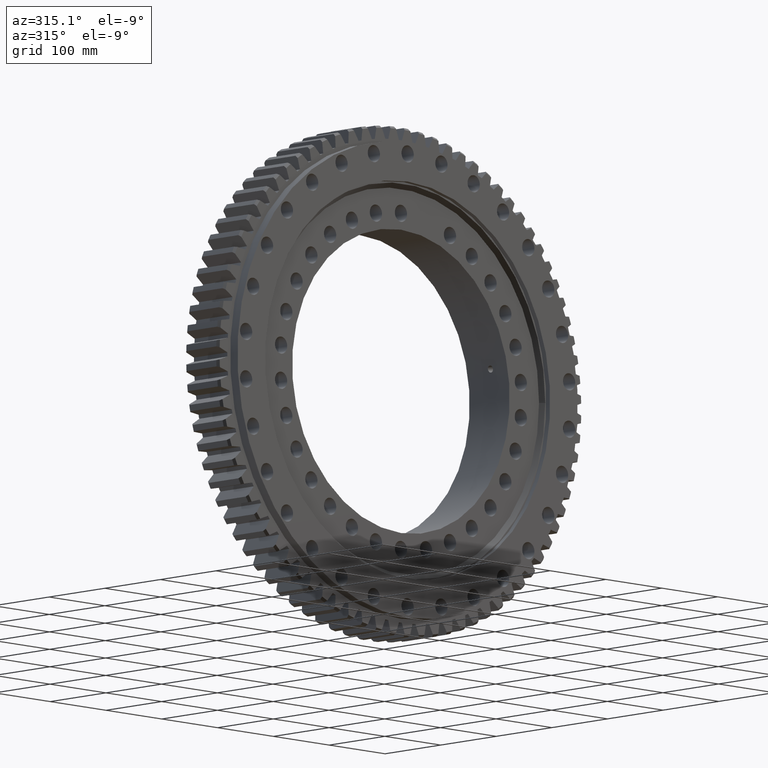
[diagram: clean part render]
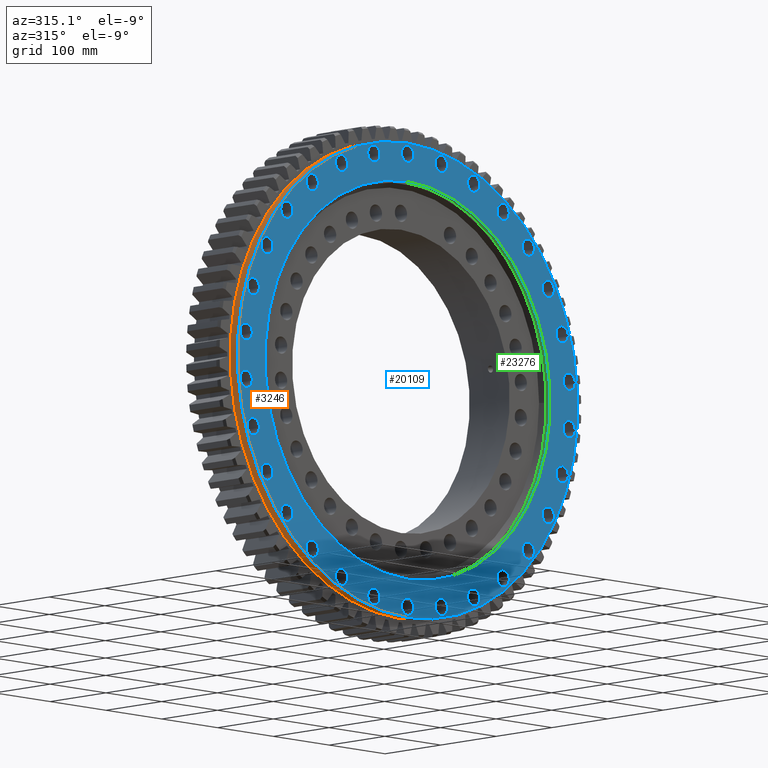
[diagram: same view with three faces highlighted in distinct colors, each labeled with its STEP entity id]
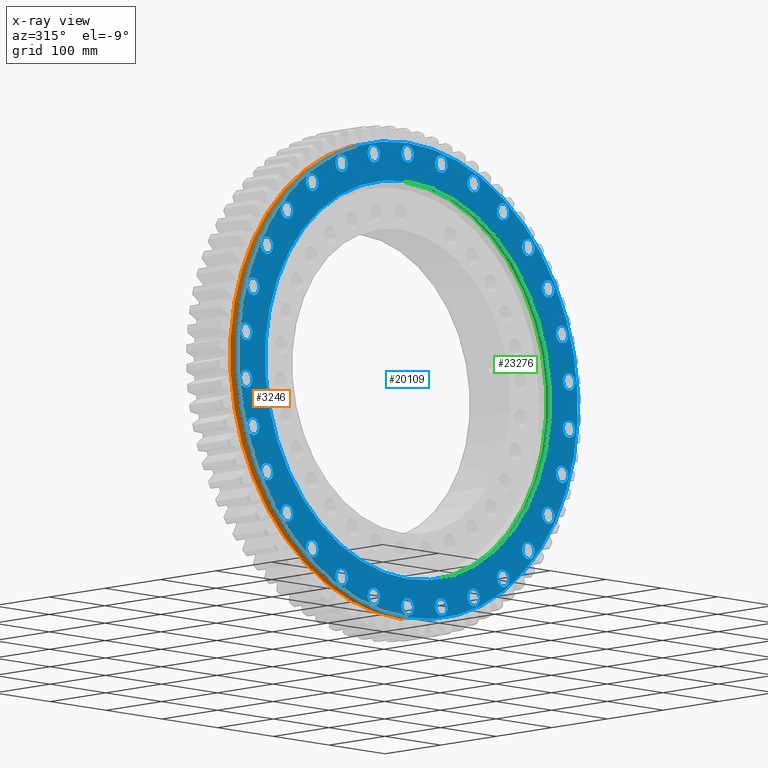
[diagram: x-ray of the same camera — body ghosted, the three highlighted faces saturated]
A machine part, auxiliary view with three faces highlighted in distinct colors.
The next image is the same camera in x-ray (body ghosted, the three faces saturated) — at least one of them is partly hidden behind the body in this view.
Their STEP definitions:

[orange] entity #3246 — the highlighted cylindrical surface (partial cylindrical patch) has radius 305 mm, axis along (-0, 1, -0).
#69 = EDGE_CURVE ( 'NONE', #17005, #770, #4381, .T. ) ;
#510 = CARTESIAN_POINT ( 'NONE',  ( 0.0000000000000000000, 68.26107226107227200, 304.9999999999999400 ) ) ;
#583 = CARTESIAN_POINT ( 'NONE',  ( 0.0000000000000000000, -29.50000000000002500, 304.9999999999999400 ) ) ;
#770 = VERTEX_POINT ( 'NONE', #583 ) ;
#1621 = ORIENTED_EDGE ( 'NONE', *, *, #9863, .F. ) ;
#1675 = AXIS2_PLACEMENT_3D ( 'NONE', #20927, #6212, #2640 ) ;
#2578 = VERTEX_POINT ( 'NONE', #14907 ) ;
#2640 = DIRECTION ( 'NONE',  ( 0.0000000000000000000, 0.0000000000000000000, 1.000000000000000000 ) ) ;
#3246 = ADVANCED_FACE ( 'NONE', ( #18873 ), #3648, .T. ) ;
#3648 = CYLINDRICAL_SURFACE ( 'NONE', #1675, 304.9999999999999400 ) ;
#4381 = CIRCLE ( 'NONE', #9609, 304.9999999999999400 ) ;
#5929 = CARTESIAN_POINT ( 'NONE',  ( 0.0000000000000000000, -29.50000000000002500, 0.0000000000000000000 ) ) ;
#6212 = DIRECTION ( 'NONE',  ( -0.0000000000000000000, 1.000000000000000000, -0.0000000000000000000 ) ) ;
#6254 = DIRECTION ( 'NONE',  ( 0.0000000000000000000, -1.000000000000000000, 0.0000000000000000000 ) ) ;
#6572 = ORIENTED_EDGE ( 'NONE', *, *, #69, .F. ) ;
#9134 = DIRECTION ( 'NONE',  ( -0.0000000000000000000, 1.000000000000000000, -0.0000000000000000000 ) ) ;
#9609 = AXIS2_PLACEMENT_3D ( 'NONE', #5929, #20463, #20553 ) ;
#9863 = EDGE_CURVE ( 'NONE', #2578, #18485, #19104, .T. ) ;
#11375 = AXIS2_PLACEMENT_3D ( 'NONE', #17276, #6254, #19137 ) ;
#11446 = EDGE_CURVE ( 'NONE', #2578, #770, #19587, .T. ) ;
#11471 = DIRECTION ( 'NONE',  ( -0.0000000000000000000, 1.000000000000000000, -0.0000000000000000000 ) ) ;
#13831 = CARTESIAN_POINT ( 'NONE',  ( 3.735172737399426400E-014, -29.50000000000002500, -304.9999999999999400 ) ) ;
#14682 = ORIENTED_EDGE ( 'NONE', *, *, #11446, .T. ) ;
#14907 = CARTESIAN_POINT ( 'NONE',  ( 0.0000000000000000000, -42.50000000000002100, 304.9999999999999400 ) ) ;
#16018 = EDGE_CURVE ( 'NONE', #18485, #17005, #18386, .T. ) ;
#17005 = VERTEX_POINT ( 'NONE', #13831 ) ;
#17234 = VECTOR ( 'NONE', #9134, 1000.000000000000000 ) ;
#17276 = CARTESIAN_POINT ( 'NONE',  ( 0.0000000000000000000, -42.50000000000002100, 0.0000000000000000000 ) ) ;
#18386 = LINE ( 'NONE', #22002, #17234 ) ;
#18443 = VECTOR ( 'NONE', #11471, 1000.000000000000000 ) ;
#18485 = VERTEX_POINT ( 'NONE', #22409 ) ;
#18873 = FACE_OUTER_BOUND ( 'NONE', #19441, .T. ) ;
#19104 = CIRCLE ( 'NONE', #11375, 304.9999999999999400 ) ;
#19137 = DIRECTION ( 'NONE',  ( 0.0000000000000000000, 0.0000000000000000000, 1.000000000000000000 ) ) ;
#19441 = EDGE_LOOP ( 'NONE', ( #21495, #1621, #14682, #6572 ) ) ;
#19587 = LINE ( 'NONE', #510, #18443 ) ;
#20463 = DIRECTION ( 'NONE',  ( -0.0000000000000000000, 1.000000000000000000, -0.0000000000000000000 ) ) ;
#20553 = DIRECTION ( 'NONE',  ( 0.0000000000000000000, 0.0000000000000000000, 1.000000000000000000 ) ) ;
#20927 = CARTESIAN_POINT ( 'NONE',  ( 0.0000000000000000000, 68.26107226107227200, 0.0000000000000000000 ) ) ;
#21495 = ORIENTED_EDGE ( 'NONE', *, *, #16018, .F. ) ;
#22002 = CARTESIAN_POINT ( 'NONE',  ( 3.735172737399426400E-014, 68.26107226107227200, -304.9999999999999400 ) ) ;
#22409 = CARTESIAN_POINT ( 'NONE',  ( 3.735172737399426400E-014, -42.50000000000002100, -304.9999999999999400 ) ) ;

[blue] entity #20109 — the highlighted planar face has unit normal (-0, 1, 0).
#18 = ORIENTED_EDGE ( 'NONE', *, *, #8493, .T. ) ;
#55 = CIRCLE ( 'NONE', #2394, 11.00000000000003200 ) ;
#77 = DIRECTION ( 'NONE',  ( 0.0000000000000000000, 0.0000000000000000000, 1.000000000000000000 ) ) ;
#82 = DIRECTION ( 'NONE',  ( 0.0000000000000000000, 1.000000000000000000, 0.0000000000000000000 ) ) ;
#114 = ORIENTED_EDGE ( 'NONE', *, *, #11133, .T. ) ;
#230 = ORIENTED_EDGE ( 'NONE', *, *, #11137, .T. ) ;
#270 = DIRECTION ( 'NONE',  ( 0.0000000000000000000, 1.000000000000000000, 0.0000000000000000000 ) ) ;
#290 = ORIENTED_EDGE ( 'NONE', *, *, #20860, .T. ) ;
#300 = DIRECTION ( 'NONE',  ( 0.0000000000000000000, 1.000000000000000000, 0.0000000000000000000 ) ) ;
#424 = FACE_BOUND ( 'NONE', #1001, .T. ) ;
#438 = ORIENTED_EDGE ( 'NONE', *, *, #1253, .T. ) ;
#501 = DIRECTION ( 'NONE',  ( 0.4067366430757892200, 0.0000000000000000000, 0.9135454576426058600 ) ) ;
#588 = CARTESIAN_POINT ( 'NONE',  ( 60.50230202796588900, -42.50000000000002100, -273.6409518135379200 ) ) ;
#651 = CARTESIAN_POINT ( 'NONE',  ( -216.2551442139236100, -42.50000000000002100, -205.7170064504256900 ) ) ;
#654 = EDGE_CURVE ( 'NONE', #5670, #16531, #20168, .T. ) ;
#661 = VERTEX_POINT ( 'NONE', #16155 ) ;
#715 = DIRECTION ( 'NONE',  ( 0.0000000000000000000, 1.000000000000000000, 0.0000000000000000000 ) ) ;
#728 = EDGE_CURVE ( 'NONE', #8967, #661, #3814, .T. ) ;
#768 = CIRCLE ( 'NONE', #17218, 11.00000000000000000 ) ;
#829 = ORIENTED_EDGE ( 'NONE', *, *, #14671, .T. ) ;
#949 = CIRCLE ( 'NONE', #11562, 11.00000000000002300 ) ;
#976 = CARTESIAN_POINT ( 'NONE',  ( -118.3603631350542300, -42.50000000000002100, 265.8417281739984900 ) ) ;
#992 = FACE_BOUND ( 'NONE', #12440, .T. ) ;
#1001 = EDGE_LOOP ( 'NONE', ( #15918, #7881 ) ) ;
#1020 = ORIENTED_EDGE ( 'NONE', *, *, #8363, .T. ) ;
#1044 = ORIENTED_EDGE ( 'NONE', *, *, #14690, .T. ) ;
#1182 = CIRCLE ( 'NONE', #15496, 11.00000000000001100 ) ;
#1220 = CARTESIAN_POINT ( 'NONE',  ( 276.7574462418892300, -42.50000000000002100, -100.9239453631111000 ) ) ;
#1253 = EDGE_CURVE ( 'NONE', #8381, #22662, #4364, .T. ) ;
#1256 = CARTESIAN_POINT ( 'NONE',  ( 171.0455084171102800, -42.50000000000002100, 224.4239453631093100 ) ) ;
#1310 = VERTEX_POINT ( 'NONE', #6782 ) ;
#1394 = ORIENTED_EDGE ( 'NONE', *, *, #1625, .T. ) ;
#1400 = AXIS2_PLACEMENT_3D ( 'NONE', #2234, #15087, #4093 ) ;
#1408 = VERTEX_POINT ( 'NONE', #1256 ) ;
#1540 = ORIENTED_EDGE ( 'NONE', *, *, #10715, .T. ) ;
#1557 = EDGE_CURVE ( 'NONE', #6285, #21582, #2334, .T. ) ;
#1598 = DIRECTION ( 'NONE',  ( 0.0000000000000000000, 1.000000000000000000, 0.0000000000000000000 ) ) ;
#1616 = EDGE_CURVE ( 'NONE', #15030, #19553, #1182, .T. ) ;
#1625 = EDGE_CURVE ( 'NONE', #22439, #18117, #5456, .T. ) ;
#1626 = CIRCLE ( 'NONE', #7842, 255.4999999999999400 ) ;
#1657 = EDGE_LOOP ( 'NONE', ( #3484, #5164 ) ) ;
#1773 = EDGE_CURVE ( 'NONE', #8795, #19900, #22701, .T. ) ;
#1774 = CIRCLE ( 'NONE', #19342, 11.00000000000001400 ) ;
#1823 = CARTESIAN_POINT ( 'NONE',  ( -171.0455084171119000, -42.50000000000002100, -235.4239453631081200 ) ) ;
#1844 = CARTESIAN_POINT ( 'NONE',  ( 0.0000000000000000000, -42.50000000000001400, 255.4999999999999400 ) ) ;
#1860 = AXIS2_PLACEMENT_3D ( 'NONE', #7096, #19968, #8949 ) ;
#1929 = EDGE_CURVE ( 'NONE', #14954, #12591, #10027, .T. ) ;
#2081 = CIRCLE ( 'NONE', #23667, 10.99999999999998000 ) ;
#2097 = CARTESIAN_POINT ( 'NONE',  ( 0.0000000000000000000, -42.50000000000000700, 0.0000000000000000000 ) ) ;
#2102 = CARTESIAN_POINT ( 'NONE',  ( -289.4058715521673000, -42.50000000000002100, 19.41778281089049000 ) ) ;
#2158 = EDGE_CURVE ( 'NONE', #18144, #3255, #20673, .T. ) ;
#2229 = CARTESIAN_POINT ( 'NONE',  ( 276.7574462418900800, -42.50000000000002100, 100.9239453631085900 ) ) ;
#2234 = CARTESIAN_POINT ( 'NONE',  ( 171.0455084171081800, -42.50000000000002100, -235.4239453631108200 ) ) ;
#2246 = AXIS2_PLACEMENT_3D ( 'NONE', #2789, #15614, #4615 ) ;
#2250 = VERTEX_POINT ( 'NONE', #2102 ) ;
#2281 = VERTEX_POINT ( 'NONE', #14937 ) ;
#2334 = CIRCLE ( 'NONE', #4441, 11.00000000000002500 ) ;
#2353 = VERTEX_POINT ( 'NONE', #4126 ) ;
#2394 = AXIS2_PLACEMENT_3D ( 'NONE', #20551, #9521, #22379 ) ;
#2400 = DIRECTION ( 'NONE',  ( 0.0000000000000000000, 1.000000000000000000, 0.0000000000000000000 ) ) ;
#2428 = CARTESIAN_POINT ( 'NONE',  ( 216.2551442139222500, -42.50000000000002100, 205.7170064504271900 ) ) ;
#2482 = ORIENTED_EDGE ( 'NONE', *, *, #16658, .T. ) ;
#2531 = ORIENTED_EDGE ( 'NONE', *, *, #654, .T. ) ;
#2543 = DIRECTION ( 'NONE',  ( 0.0000000000000000000, 1.000000000000000000, 0.0000000000000000000 ) ) ;
#2578 = VERTEX_POINT ( 'NONE', #14907 ) ;
#2625 = VERTEX_POINT ( 'NONE', #8091 ) ;
#2789 = CARTESIAN_POINT ( 'NONE',  ( 60.50230202796588900, -42.50000000000002100, -284.6409518135379200 ) ) ;
#2814 = DIRECTION ( 'NONE',  ( -0.4067366430758004900, 0.0000000000000000000, 0.9135454576426008700 ) ) ;
#2819 = AXIS2_PLACEMENT_3D ( 'NONE', #18862, #7854, #20681 ) ;
#2973 = VERTEX_POINT ( 'NONE', #3844 ) ;
#2993 = FACE_BOUND ( 'NONE', #22745, .T. ) ;
#3041 = CARTESIAN_POINT ( 'NONE',  ( -252.0133925012731300, -42.50000000000002100, -156.4999999999975300 ) ) ;
#3060 = DIRECTION ( 'NONE',  ( 0.0000000000000000000, 1.000000000000000000, 0.0000000000000000000 ) ) ;
#3066 = ORIENTED_EDGE ( 'NONE', *, *, #5038, .T. ) ;
#3198 = EDGE_CURVE ( 'NONE', #2250, #16619, #14544, .T. ) ;
#3200 = CARTESIAN_POINT ( 'NONE',  ( 289.4058715521677500, -42.50000000000002100, 19.41778281088588200 ) ) ;
#3201 = AXIS2_PLACEMENT_3D ( 'NONE', #20628, #9616, #22474 ) ;
#3213 = ORIENTED_EDGE ( 'NONE', *, *, #2158, .T. ) ;
#3248 = CARTESIAN_POINT ( 'NONE',  ( -276.7574462418886600, -42.50000000000002100, 78.92394536311302000 ) ) ;
#3255 = VERTEX_POINT ( 'NONE', #19168 ) ;
#3266 = ORIENTED_EDGE ( 'NONE', *, *, #9863, .T. ) ;
#3280 = CARTESIAN_POINT ( 'NONE',  ( -171.0455084171119000, -42.50000000000002100, -224.4239453631081200 ) ) ;
#3296 = CARTESIAN_POINT ( 'NONE',  ( 118.3603631350584600, -42.50000000000002100, 265.8417281739967300 ) ) ;
#3304 = EDGE_LOOP ( 'NONE', ( #5998, #13086 ) ) ;
#3423 = AXIS2_PLACEMENT_3D ( 'NONE', #22463, #11457, #501 ) ;
#3455 = CARTESIAN_POINT ( 'NONE',  ( -276.7574462418907000, -42.50000000000002100, -100.9239453631068400 ) ) ;
#3464 = EDGE_CURVE ( 'NONE', #18485, #2578, #19139, .T. ) ;
#3484 = ORIENTED_EDGE ( 'NONE', *, *, #14901, .T. ) ;
#3506 = CARTESIAN_POINT ( 'NONE',  ( 276.7574462418892300, -42.50000000000002100, -89.92394536311108800 ) ) ;
#3562 = DIRECTION ( 'NONE',  ( 0.0000000000000000000, 1.000000000000000000, 0.0000000000000000000 ) ) ;
#3575 = FACE_BOUND ( 'NONE', #11134, .T. ) ;
#3615 = VERTEX_POINT ( 'NONE', #15500 ) ;
#3653 = CARTESIAN_POINT ( 'NONE',  ( -216.2551442139192900, -42.50000000000002100, 194.7170064504305500 ) ) ;
#3671 = AXIS2_PLACEMENT_3D ( 'NONE', #12580, #1598, #14432 ) ;
#3676 = DIRECTION ( 'NONE',  ( -0.5877852522924685900, 0.0000000000000000000, -0.8090169943749506700 ) ) ;
#3714 = EDGE_LOOP ( 'NONE', ( #22563, #290 ) ) ;
#3753 = ORIENTED_EDGE ( 'NONE', *, *, #14851, .T. ) ;
#3814 = CIRCLE ( 'NONE', #17322, 255.4999999999999400 ) ;
#3825 = EDGE_LOOP ( 'NONE', ( #8772, #16778 ) ) ;
#3830 = EDGE_LOOP ( 'NONE', ( #3266, #22923 ) ) ;
#3844 = CARTESIAN_POINT ( 'NONE',  ( 276.7574462418892300, -42.50000000000002100, -78.92394536311107300 ) ) ;
#3897 = EDGE_CURVE ( 'NONE', #23567, #8556, #7331, .T. ) ;
#3971 = AXIS2_PLACEMENT_3D ( 'NONE', #13531, #2543, #15391 ) ;
#4033 = DIRECTION ( 'NONE',  ( 0.0000000000000000000, 1.000000000000000000, 0.0000000000000000000 ) ) ;
#4047 = DIRECTION ( 'NONE',  ( -0.0000000000000000000, 1.000000000000000000, -0.0000000000000000000 ) ) ;
#4093 = DIRECTION ( 'NONE',  ( 0.5877852522924800200, 0.0000000000000000000, -0.8090169943749423400 ) ) ;
#4097 = AXIS2_PLACEMENT_3D ( 'NONE', #1844, #11056, #77 ) ;
#4126 = CARTESIAN_POINT ( 'NONE',  ( 4.246603069191223000E-012, -42.50000000000002100, 302.0000000000000600 ) ) ;
#4150 = DIRECTION ( 'NONE',  ( 0.0000000000000000000, 1.000000000000000000, 0.0000000000000000000 ) ) ;
#4153 = ORIENTED_EDGE ( 'NONE', *, *, #12889, .T. ) ;
#4156 = FACE_BOUND ( 'NONE', #7775, .T. ) ;
#4164 = AXIS2_PLACEMENT_3D ( 'NONE', #18589, #7567, #20406 ) ;
#4329 = CARTESIAN_POINT ( 'NONE',  ( -289.4058715521673000, -42.50000000000002100, 30.41778281089049000 ) ) ;
#4338 = AXIS2_PLACEMENT_3D ( 'NONE', #15026, #4033, #16863 ) ;
#4364 = CIRCLE ( 'NONE', #22567, 11.00000000000000900 ) ;
#4370 = CARTESIAN_POINT ( 'NONE',  ( -276.7574462418886600, -42.50000000000002100, 89.92394536311303500 ) ) ;
#4387 = CARTESIAN_POINT ( 'NONE',  ( -60.50230202796395000, -42.50000000000002100, 284.6409518135383200 ) ) ;
#4441 = AXIS2_PLACEMENT_3D ( 'NONE', #5794, #270, #13112 ) ;
#4448 = CIRCLE ( 'NONE', #12723, 11.00000000000002500 ) ;
#4457 = VERTEX_POINT ( 'NONE', #2428 ) ;
#4519 = CARTESIAN_POINT ( 'NONE',  ( 171.0455084171081800, -42.50000000000002100, -235.4239453631108200 ) ) ;
#4532 = DIRECTION ( 'NONE',  ( 0.0000000000000000000, 1.000000000000000000, 0.0000000000000000000 ) ) ;
#4534 = ORIENTED_EDGE ( 'NONE', *, *, #17228, .T. ) ;
#4549 = CIRCLE ( 'NONE', #11013, 11.00000000000000500 ) ;
#4589 = CARTESIAN_POINT ( 'NONE',  ( 252.0133925012709100, -42.50000000000002100, -145.5000000000013600 ) ) ;
#4591 = EDGE_CURVE ( 'NONE', #21582, #6285, #9303, .T. ) ;
#4615 = DIRECTION ( 'NONE',  ( 0.2079116908177662500, 0.0000000000000000000, -0.9781476007338041300 ) ) ;
#4628 = AXIS2_PLACEMENT_3D ( 'NONE', #1823, #14650, #3676 ) ;
#4713 = FACE_BOUND ( 'NONE', #11421, .T. ) ;
#4733 = CARTESIAN_POINT ( 'NONE',  ( -276.7574462418907000, -42.50000000000002100, -78.92394536310682400 ) ) ;
#4782 = EDGE_CURVE ( 'NONE', #10569, #22959, #10730, .T. ) ;
#4785 = VERTEX_POINT ( 'NONE', #21806 ) ;
#4799 = EDGE_LOOP ( 'NONE', ( #10605, #114 ) ) ;
#4822 = EDGE_CURVE ( 'NONE', #9333, #1408, #18805, .T. ) ;
#4832 = CARTESIAN_POINT ( 'NONE',  ( -60.50230202797035900, -42.50000000000002100, -295.6409518135369600 ) ) ;
#4845 = VERTEX_POINT ( 'NONE', #18357 ) ;
#4916 = AXIS2_PLACEMENT_3D ( 'NONE', #13395, #2400, #15231 ) ;
#4919 = DIRECTION ( 'NONE',  ( 0.0000000000000000000, 1.000000000000000000, 0.0000000000000000000 ) ) ;
#4928 = CIRCLE ( 'NONE', #7292, 10.99999999999997700 ) ;
#5038 = EDGE_CURVE ( 'NONE', #18117, #22439, #20207, .T. ) ;
#5109 = DIRECTION ( 'NONE',  ( 0.4067366430757892200, 0.0000000000000000000, 0.9135454576426058600 ) ) ;
#5164 = ORIENTED_EDGE ( 'NONE', *, *, #9169, .T. ) ;
#5181 = DIRECTION ( 'NONE',  ( 0.0000000000000000000, 1.000000000000000000, 0.0000000000000000000 ) ) ;
#5281 = FACE_BOUND ( 'NONE', #13241, .T. ) ;
#5291 = VERTEX_POINT ( 'NONE', #3041 ) ;
#5301 = CARTESIAN_POINT ( 'NONE',  ( -252.0133925012699200, -42.50000000000002100, 134.5000000000031300 ) ) ;
#5335 = DIRECTION ( 'NONE',  ( 0.9510565162951566400, 0.0000000000000000000, -0.3090169943749381300 ) ) ;
#5347 = EDGE_CURVE ( 'NONE', #16595, #20580, #19662, .T. ) ;
#5348 = DIRECTION ( 'NONE',  ( 0.0000000000000000000, 1.000000000000000000, 0.0000000000000000000 ) ) ;
#5350 = CIRCLE ( 'NONE', #16441, 10.99999999999999300 ) ;
#5386 = VERTEX_POINT ( 'NONE', #22101 ) ;
#5426 = CARTESIAN_POINT ( 'NONE',  ( 4.247950180670285100E-012, -42.50000000000002100, 280.0000000000000000 ) ) ;
#5456 = CIRCLE ( 'NONE', #17975, 10.99999999999999100 ) ;
#5460 = DIRECTION ( 'NONE',  ( -0.7431448254773949100, 0.0000000000000000000, 0.6691306063588573500 ) ) ;
#5522 = CIRCLE ( 'NONE', #19171, 11.00000000000001100 ) ;
#5628 = CARTESIAN_POINT ( 'NONE',  ( -276.7574462418886600, -42.50000000000002100, 89.92394536311303500 ) ) ;
#5639 = DIRECTION ( 'NONE',  ( 0.0000000000000000000, 1.000000000000000000, 0.0000000000000000000 ) ) ;
#5640 = CARTESIAN_POINT ( 'NONE',  ( 276.7574462418892300, -42.50000000000002100, -89.92394536311108800 ) ) ;
#5670 = VERTEX_POINT ( 'NONE', #5301 ) ;
#5681 = DIRECTION ( 'NONE',  ( 0.0000000000000000000, 1.000000000000000000, 0.0000000000000000000 ) ) ;
#5781 = CIRCLE ( 'NONE', #21374, 11.00000000000002700 ) ;
#5794 = CARTESIAN_POINT ( 'NONE',  ( -289.4058715521679200, -42.50000000000002100, -30.41778281088399500 ) ) ;
#5854 = FACE_BOUND ( 'NONE', #9876, .T. ) ;
#5893 = CARTESIAN_POINT ( 'NONE',  ( 216.2551442139206000, -42.50000000000002100, -205.7170064504291000 ) ) ;
#5947 = ORIENTED_EDGE ( 'NONE', *, *, #17435, .T. ) ;
#5998 = ORIENTED_EDGE ( 'NONE', *, *, #18381, .T. ) ;
#6007 = ORIENTED_EDGE ( 'NONE', *, *, #6178, .T. ) ;
#6043 = CIRCLE ( 'NONE', #16830, 11.00000000000002300 ) ;
#6153 = DIRECTION ( 'NONE',  ( -0.9945218953682737300, 0.0000000000000000000, 0.1045284632676502900 ) ) ;
#6169 = CIRCLE ( 'NONE', #17533, 11.00000000000001100 ) ;
#6178 = EDGE_CURVE ( 'NONE', #11488, #16610, #19903, .T. ) ;
#6182 = DIRECTION ( 'NONE',  ( -0.9510565162951543100, 0.0000000000000000000, 0.3090169943749452900 ) ) ;
#6195 = DIRECTION ( 'NONE',  ( -0.2079116908177595900, 0.0000000000000000000, 0.9781476007338055800 ) ) ;
#6208 = EDGE_CURVE ( 'NONE', #4457, #9603, #9549, .T. ) ;
#6251 = VERTEX_POINT ( 'NONE', #19525 ) ;
#6254 = DIRECTION ( 'NONE',  ( 0.0000000000000000000, -1.000000000000000000, 0.0000000000000000000 ) ) ;
#6285 = VERTEX_POINT ( 'NONE', #6758 ) ;
#6320 = DIRECTION ( 'NONE',  ( 0.0000000000000000000, 1.000000000000000000, 0.0000000000000000000 ) ) ;
#6385 = ORIENTED_EDGE ( 'NONE', *, *, #20530, .T. ) ;
#6405 = DIRECTION ( 'NONE',  ( 0.8660254037844428200, 0.0000000000000000000, -0.4999999999999928900 ) ) ;
#6541 = CARTESIAN_POINT ( 'NONE',  ( -289.4058715521679200, -42.50000000000002100, -30.41778281088399500 ) ) ;
#6604 = AXIS2_PLACEMENT_3D ( 'NONE', #20453, #9433, #22289 ) ;
#6631 = CIRCLE ( 'NONE', #20048, 11.00000000000000500 ) ;
#6752 = AXIS2_PLACEMENT_3D ( 'NONE', #10961, #23829, #12821 ) ;
#6758 = CARTESIAN_POINT ( 'NONE',  ( -289.4058715521679200, -42.50000000000002100, -41.41778281088399900 ) ) ;
#6782 = CARTESIAN_POINT ( 'NONE',  ( 252.0133925012720800, -42.50000000000002100, 156.4999999999992900 ) ) ;
#6842 = CARTESIAN_POINT ( 'NONE',  ( 276.7574462418900800, -42.50000000000002100, 89.92394536310857200 ) ) ;
#6993 = FACE_BOUND ( 'NONE', #3825, .T. ) ;
#7029 = DIRECTION ( 'NONE',  ( 0.0000000000000000000, 1.000000000000000000, 0.0000000000000000000 ) ) ;
#7084 = DIRECTION ( 'NONE',  ( 0.0000000000000000000, -1.000000000000000000, 0.0000000000000000000 ) ) ;
#7096 = CARTESIAN_POINT ( 'NONE',  ( -118.3603631350542300, -42.50000000000002100, 265.8417281739984900 ) ) ;
#7140 = AXIS2_PLACEMENT_3D ( 'NONE', #19453, #8461, #21300 ) ;
#7237 = CIRCLE ( 'NONE', #7395, 10.99999999999999300 ) ;
#7282 = EDGE_LOOP ( 'NONE', ( #9119, #10282 ) ) ;
#7292 = AXIS2_PLACEMENT_3D ( 'NONE', #9677, #22551, #11547 ) ;
#7319 = ORIENTED_EDGE ( 'NONE', *, *, #1557, .T. ) ;
#7331 = CIRCLE ( 'NONE', #9352, 10.99999999999998400 ) ;
#7395 = AXIS2_PLACEMENT_3D ( 'NONE', #5628, #18481, #7462 ) ;
#7428 = EDGE_CURVE ( 'NONE', #8261, #2973, #4448, .T. ) ;
#7462 = DIRECTION ( 'NONE',  ( -0.9510565162951543100, 0.0000000000000000000, 0.3090169943749452900 ) ) ;
#7478 = DIRECTION ( 'NONE',  ( 0.9510565162951566400, 0.0000000000000000000, -0.3090169943749381300 ) ) ;
#7548 = EDGE_CURVE ( 'NONE', #2973, #8261, #20510, .T. ) ;
#7567 = DIRECTION ( 'NONE',  ( 0.0000000000000000000, 1.000000000000000000, 0.0000000000000000000 ) ) ;
#7568 = ORIENTED_EDGE ( 'NONE', *, *, #22078, .T. ) ;
#7665 = CARTESIAN_POINT ( 'NONE',  ( 216.2551442139222500, -42.50000000000002100, 194.7170064504271900 ) ) ;
#7727 = VERTEX_POINT ( 'NONE', #21047 ) ;
#7741 = DIRECTION ( 'NONE',  ( 0.0000000000000000000, 1.000000000000000000, 0.0000000000000000000 ) ) ;
#7753 = AXIS2_PLACEMENT_3D ( 'NONE', #11260, #300, #13132 ) ;
#7775 = EDGE_LOOP ( 'NONE', ( #6385, #16882 ) ) ;
#7842 = AXIS2_PLACEMENT_3D ( 'NONE', #15044, #4047, #16877 ) ;
#7854 = DIRECTION ( 'NONE',  ( 0.0000000000000000000, 1.000000000000000000, 0.0000000000000000000 ) ) ;
#7872 = FACE_BOUND ( 'NONE', #12728, .T. ) ;
#7881 = ORIENTED_EDGE ( 'NONE', *, *, #7428, .T. ) ;
#7977 = CIRCLE ( 'NONE', #13378, 11.00000000000000400 ) ;
#7987 = EDGE_LOOP ( 'NONE', ( #1540, #2531 ) ) ;
#8091 = CARTESIAN_POINT ( 'NONE',  ( 118.3603631350584600, -42.50000000000002100, 276.8417281739967300 ) ) ;
#8169 = EDGE_LOOP ( 'NONE', ( #21794, #9058 ) ) ;
#8171 = ORIENTED_EDGE ( 'NONE', *, *, #10322, .T. ) ;
#8247 = CARTESIAN_POINT ( 'NONE',  ( 60.50230202796588900, -42.50000000000002100, -284.6409518135379200 ) ) ;
#8261 = VERTEX_POINT ( 'NONE', #1220 ) ;
#8363 = EDGE_CURVE ( 'NONE', #16619, #2250, #17881, .T. ) ;
#8378 = VERTEX_POINT ( 'NONE', #3455 ) ;
#8381 = VERTEX_POINT ( 'NONE', #14437 ) ;
#8399 = DIRECTION ( 'NONE',  ( -0.9945218953682729600, 0.0000000000000000000, -0.1045284632676571500 ) ) ;
#8400 = VERTEX_POINT ( 'NONE', #21810 ) ;
#8424 = ORIENTED_EDGE ( 'NONE', *, *, #4591, .T. ) ;
#8426 = FACE_BOUND ( 'NONE', #22520, .T. ) ;
#8448 = DIRECTION ( 'NONE',  ( 0.0000000000000000000, 1.000000000000000000, 0.0000000000000000000 ) ) ;
#8461 = DIRECTION ( 'NONE',  ( 0.0000000000000000000, 1.000000000000000000, 0.0000000000000000000 ) ) ;
#8493 = EDGE_CURVE ( 'NONE', #17477, #19737, #2081, .T. ) ;
#8509 = ORIENTED_EDGE ( 'NONE', *, *, #3897, .T. ) ;
#8556 = VERTEX_POINT ( 'NONE', #2229 ) ;
#8558 = DIRECTION ( 'NONE',  ( 0.0000000000000000000, 1.000000000000000000, 0.0000000000000000000 ) ) ;
#8688 = DIRECTION ( 'NONE',  ( 0.9510565162951499800, 0.0000000000000000000, 0.3090169943749581600 ) ) ;
#8690 = CARTESIAN_POINT ( 'NONE',  ( -252.0133925012699200, -42.50000000000002100, 156.5000000000031300 ) ) ;
#8702 = VERTEX_POINT ( 'NONE', #19039 ) ;
#8772 = ORIENTED_EDGE ( 'NONE', *, *, #728, .T. ) ;
#8795 = VERTEX_POINT ( 'NONE', #23020 ) ;
#8804 = VERTEX_POINT ( 'NONE', #4733 ) ;
#8911 = CIRCLE ( 'NONE', #23817, 11.00000000000000400 ) ;
#8947 = ORIENTED_EDGE ( 'NONE', *, *, #11337, .T. ) ;
#8949 = DIRECTION ( 'NONE',  ( -0.4067366430758004900, 0.0000000000000000000, 0.9135454576426008700 ) ) ;
#8963 = AXIS2_PLACEMENT_3D ( 'NONE', #7665, #20518, #9491 ) ;
#8967 = VERTEX_POINT ( 'NONE', #18207 ) ;
#8985 = EDGE_LOOP ( 'NONE', ( #16270, #11204 ) ) ;
#8996 = FACE_BOUND ( 'NONE', #3304, .T. ) ;
#9058 = ORIENTED_EDGE ( 'NONE', *, *, #19378, .T. ) ;
#9089 = EDGE_CURVE ( 'NONE', #8400, #6251, #5781, .T. ) ;
#9119 = ORIENTED_EDGE ( 'NONE', *, *, #14507, .T. ) ;
#9162 = CARTESIAN_POINT ( 'NONE',  ( 216.2551442139206000, -42.50000000000002100, -194.7170064504290700 ) ) ;
#9169 = EDGE_CURVE ( 'NONE', #20544, #8702, #16978, .T. ) ;
#9188 = DIRECTION ( 'NONE',  ( 0.0000000000000000000, 1.000000000000000000, 0.0000000000000000000 ) ) ;
#9191 = PLANE ( 'NONE',  #4097 ) ;
#9303 = CIRCLE ( 'NONE', #12146, 11.00000000000002500 ) ;
#9333 = VERTEX_POINT ( 'NONE', #15686 ) ;
#9352 = AXIS2_PLACEMENT_3D ( 'NONE', #15518, #4532, #17372 ) ;
#9416 = CARTESIAN_POINT ( 'NONE',  ( -118.3603631350601800, -42.50000000000002100, -265.8417281739958800 ) ) ;
#9433 = DIRECTION ( 'NONE',  ( 0.0000000000000000000, 1.000000000000000000, 0.0000000000000000000 ) ) ;
#9483 = CIRCLE ( 'NONE', #21258, 10.99999999999998400 ) ;
#9491 = DIRECTION ( 'NONE',  ( 0.7431448254773864700, 0.0000000000000000000, 0.6691306063588667900 ) ) ;
#9521 = DIRECTION ( 'NONE',  ( 0.0000000000000000000, 1.000000000000000000, 0.0000000000000000000 ) ) ;
#9549 = CIRCLE ( 'NONE', #7140, 11.00000000000000900 ) ;
#9567 = FACE_BOUND ( 'NONE', #19474, .T. ) ;
#9593 = ORIENTED_EDGE ( 'NONE', *, *, #10811, .T. ) ;
#9603 = VERTEX_POINT ( 'NONE', #23806 ) ;
#9616 = DIRECTION ( 'NONE',  ( 0.0000000000000000000, 1.000000000000000000, 0.0000000000000000000 ) ) ;
#9638 = ORIENTED_EDGE ( 'NONE', *, *, #12272, .T. ) ;
#9640 = AXIS2_PLACEMENT_3D ( 'NONE', #3653, #16468, #5460 ) ;
#9658 = CARTESIAN_POINT ( 'NONE',  ( 289.4058715521674700, -42.50000000000002100, -41.41778281088853200 ) ) ;
#9677 = CARTESIAN_POINT ( 'NONE',  ( 289.4058715521677500, -42.50000000000002100, 30.41778281088588500 ) ) ;
#9863 = EDGE_CURVE ( 'NONE', #2578, #18485, #19104, .T. ) ;
#9876 = EDGE_LOOP ( 'NONE', ( #20522, #21129 ) ) ;
#10006 = DIRECTION ( 'NONE',  ( 0.0000000000000000000, 1.000000000000000000, 0.0000000000000000000 ) ) ;
#10007 = AXIS2_PLACEMENT_3D ( 'NONE', #21871, #10865, #23740 ) ;
#10027 = CIRCLE ( 'NONE', #11342, 11.00000000000001200 ) ;
#10081 = DIRECTION ( 'NONE',  ( 0.2079116908177662500, 0.0000000000000000000, -0.9781476007338041300 ) ) ;
#10141 = FACE_BOUND ( 'NONE', #1657, .T. ) ;
#10198 = EDGE_LOOP ( 'NONE', ( #4153, #23815 ) ) ;
#10210 = CARTESIAN_POINT ( 'NONE',  ( -216.2551442139192900, -42.50000000000002100, 183.7170064504305500 ) ) ;
#10282 = ORIENTED_EDGE ( 'NONE', *, *, #1929, .T. ) ;
#10322 = EDGE_CURVE ( 'NONE', #5386, #2281, #21363, .T. ) ;
#10403 = EDGE_LOOP ( 'NONE', ( #18496, #18551 ) ) ;
#10406 = VERTEX_POINT ( 'NONE', #22570 ) ;
#10468 = CARTESIAN_POINT ( 'NONE',  ( -171.0455084171119000, -42.50000000000002100, -235.4239453631081200 ) ) ;
#10495 = EDGE_CURVE ( 'NONE', #20910, #7727, #18495, .T. ) ;
#10569 = VERTEX_POINT ( 'NONE', #19818 ) ;
#10605 = ORIENTED_EDGE ( 'NONE', *, *, #14539, .T. ) ;
#10606 = DIRECTION ( 'NONE',  ( 0.0000000000000000000, 1.000000000000000000, 0.0000000000000000000 ) ) ;
#10638 = CARTESIAN_POINT ( 'NONE',  ( 171.0455084171081800, -42.50000000000002100, -224.4239453631108200 ) ) ;
#10669 = CARTESIAN_POINT ( 'NONE',  ( 276.7574462418900800, -42.50000000000002100, 78.92394536310857200 ) ) ;
#10715 = EDGE_CURVE ( 'NONE', #16531, #5670, #17037, .T. ) ;
#10719 = CARTESIAN_POINT ( 'NONE',  ( 289.4058715521674700, -42.50000000000002100, -30.41778281088852900 ) ) ;
#10730 = CIRCLE ( 'NONE', #1860, 11.00000000000000400 ) ;
#10729 = FACE_BOUND ( 'NONE', #22924, .T. ) ;
#10733 = DIRECTION ( 'NONE',  ( 0.0000000000000000000, 1.000000000000000000, 0.0000000000000000000 ) ) ;
#10787 = CARTESIAN_POINT ( 'NONE',  ( 60.50230202796588900, -42.50000000000002100, -295.6409518135379200 ) ) ;
#10811 = EDGE_CURVE ( 'NONE', #3615, #2625, #12735, .T. ) ;
#10865 = DIRECTION ( 'NONE',  ( 0.0000000000000000000, 1.000000000000000000, 0.0000000000000000000 ) ) ;
#10961 = CARTESIAN_POINT ( 'NONE',  ( 171.0455084171102800, -42.50000000000002100, 235.4239453631093100 ) ) ;
#11013 = AXIS2_PLACEMENT_3D ( 'NONE', #14541, #3562, #16371 ) ;
#11028 = DIRECTION ( 'NONE',  ( 0.7431448254773996800, 0.0000000000000000000, -0.6691306063588521300 ) ) ;
#11056 = DIRECTION ( 'NONE',  ( -0.0000000000000000000, 1.000000000000000000, 0.0000000000000000000 ) ) ;
#11062 = CARTESIAN_POINT ( 'NONE',  ( -276.7574462418907000, -42.50000000000002100, -89.92394536310682400 ) ) ;
#11133 = EDGE_CURVE ( 'NONE', #5291, #4785, #949, .T. ) ;
#11134 = EDGE_LOOP ( 'NONE', ( #1020, #17208 ) ) ;
#11137 = EDGE_CURVE ( 'NONE', #22662, #8381, #19880, .T. ) ;
#11204 = ORIENTED_EDGE ( 'NONE', *, *, #1773, .T. ) ;
#11260 = CARTESIAN_POINT ( 'NONE',  ( -171.0455084171065600, -42.50000000000002100, 235.4239453631120100 ) ) ;
#11273 = DIRECTION ( 'NONE',  ( -0.4067366430757933800, 0.0000000000000000000, -0.9135454576426038600 ) ) ;
#11337 = EDGE_CURVE ( 'NONE', #10406, #15891, #7237, .T. ) ;
#11342 = AXIS2_PLACEMENT_3D ( 'NONE', #19444, #8448, #21293 ) ;
#11375 = AXIS2_PLACEMENT_3D ( 'NONE', #17276, #6254, #19137 ) ;
#11421 = EDGE_LOOP ( 'NONE', ( #18665, #18 ) ) ;
#11457 = DIRECTION ( 'NONE',  ( 0.0000000000000000000, 1.000000000000000000, 0.0000000000000000000 ) ) ;
#11488 = VERTEX_POINT ( 'NONE', #588 ) ;
#11506 = CIRCLE ( 'NONE', #14359, 11.00000000000001200 ) ;
#11547 = DIRECTION ( 'NONE',  ( 0.9945218953682722900, 0.0000000000000000000, 0.1045284632676636000 ) ) ;
#11562 = AXIS2_PLACEMENT_3D ( 'NONE', #18038, #7029, #19869 ) ;
#11688 = CARTESIAN_POINT ( 'NONE',  ( 252.0133925012720800, -42.50000000000002100, 145.4999999999992600 ) ) ;
#11728 = AXIS2_PLACEMENT_3D ( 'NONE', #4589, #17427, #6405 ) ;
#11731 = VERTEX_POINT ( 'NONE', #14034 ) ;
#11774 = CIRCLE ( 'NONE', #11728, 11.00000000000000000 ) ;
#11863 = VERTEX_POINT ( 'NONE', #5426 ) ;
#11951 = CIRCLE ( 'NONE', #23044, 11.00000000000002700 ) ;
#12030 = EDGE_CURVE ( 'NONE', #4845, #15798, #17840, .T. ) ;
#12146 = AXIS2_PLACEMENT_3D ( 'NONE', #6541, #19410, #8399 ) ;
#12266 = DIRECTION ( 'NONE',  ( 0.9945218953682744000, 0.0000000000000000000, -0.1045284632676434200 ) ) ;
#12272 = EDGE_CURVE ( 'NONE', #8556, #23567, #9483, .T. ) ;
#12324 = DIRECTION ( 'NONE',  ( -0.5877852522924685900, 0.0000000000000000000, -0.8090169943749506700 ) ) ;
#12389 = CARTESIAN_POINT ( 'NONE',  ( -118.3603631350542300, -42.50000000000002100, 254.8417281739984600 ) ) ;
#12440 = EDGE_LOOP ( 'NONE', ( #17801, #1044 ) ) ;
#12465 = ORIENTED_EDGE ( 'NONE', *, *, #1616, .T. ) ;
#12575 = DIRECTION ( 'NONE',  ( 0.9945218953682744000, 0.0000000000000000000, -0.1045284632676434200 ) ) ;
#12580 = CARTESIAN_POINT ( 'NONE',  ( 118.3603631350559900, -42.50000000000002100, -265.8417281739977500 ) ) ;
#12591 = VERTEX_POINT ( 'NONE', #13586 ) ;
#12596 = ORIENTED_EDGE ( 'NONE', *, *, #4782, .T. ) ;
#12640 = CARTESIAN_POINT ( 'NONE',  ( -171.0455084171119000, -42.50000000000002100, -246.4239453631081500 ) ) ;
#12655 = EDGE_CURVE ( 'NONE', #13869, #22198, #11774, .T. ) ;
#12696 = CIRCLE ( 'NONE', #8963, 11.00000000000000900 ) ;
#12723 = AXIS2_PLACEMENT_3D ( 'NONE', #3506, #16313, #5335 ) ;
#12728 = EDGE_LOOP ( 'NONE', ( #4534, #829 ) ) ;
#12735 = CIRCLE ( 'NONE', #3423, 11.00000000000000400 ) ;
#12751 = FACE_BOUND ( 'NONE', #14916, .T. ) ;
#12793 = DIRECTION ( 'NONE',  ( 0.0000000000000000000, 1.000000000000000000, 0.0000000000000000000 ) ) ;
#12803 = AXIS2_PLACEMENT_3D ( 'NONE', #10719, #23581, #12575 ) ;
#12821 = DIRECTION ( 'NONE',  ( 0.5877852522924641400, 0.0000000000000000000, 0.8090169943749538900 ) ) ;
#12889 = EDGE_CURVE ( 'NONE', #1310, #22068, #22963, .T. ) ;
#12911 = DIRECTION ( 'NONE',  ( -0.9510565162951524200, 0.0000000000000000000, -0.3090169943749510000 ) ) ;
#13086 = ORIENTED_EDGE ( 'NONE', *, *, #9089, .T. ) ;
#13112 = DIRECTION ( 'NONE',  ( -0.9945218953682729600, 0.0000000000000000000, -0.1045284632676571500 ) ) ;
#13132 = DIRECTION ( 'NONE',  ( -0.5877852522924742500, 0.0000000000000000000, 0.8090169943749464500 ) ) ;
#13171 = AXIS2_PLACEMENT_3D ( 'NONE', #9162, #22021, #11028 ) ;
#13224 = CIRCLE ( 'NONE', #20420, 10.99999999999998900 ) ;
#13241 = EDGE_LOOP ( 'NONE', ( #438, #230 ) ) ;
#13340 = FACE_BOUND ( 'NONE', #15799, .T. ) ;
#13378 = AXIS2_PLACEMENT_3D ( 'NONE', #976, #13804, #2814 ) ;
#13386 = EDGE_CURVE ( 'NONE', #3255, #18144, #23535, .T. ) ;
#13395 = CARTESIAN_POINT ( 'NONE',  ( 289.4058715521677500, -42.50000000000002100, 30.41778281088588500 ) ) ;
#13531 = CARTESIAN_POINT ( 'NONE',  ( -60.50230202796395000, -42.50000000000002100, 284.6409518135383200 ) ) ;
#13549 = DIRECTION ( 'NONE',  ( 0.8660254037844326000, 0.0000000000000000000, 0.5000000000000105500 ) ) ;
#13586 = CARTESIAN_POINT ( 'NONE',  ( -216.2551442139236100, -42.50000000000002100, -183.7170064504256600 ) ) ;
#13649 = AXIS2_PLACEMENT_3D ( 'NONE', #19616, #13766, #17774 ) ;
#13766 = DIRECTION ( 'NONE',  ( 0.0000000000000000000, 1.000000000000000000, 0.0000000000000000000 ) ) ;
#13770 = CARTESIAN_POINT ( 'NONE',  ( 171.0455084171081800, -42.50000000000002100, -246.4239453631108200 ) ) ;
#13804 = DIRECTION ( 'NONE',  ( 0.0000000000000000000, 1.000000000000000000, 0.0000000000000000000 ) ) ;
#13827 = CARTESIAN_POINT ( 'NONE',  ( 252.0133925012709100, -42.50000000000002100, -134.5000000000013600 ) ) ;
#13869 = VERTEX_POINT ( 'NONE', #13827 ) ;
#13907 = FACE_BOUND ( 'NONE', #10403, .T. ) ;
#14034 = CARTESIAN_POINT ( 'NONE',  ( -171.0455084171065600, -42.50000000000002100, 246.4239453631120100 ) ) ;
#14192 = CARTESIAN_POINT ( 'NONE',  ( 289.4058715521674700, -42.50000000000002100, -30.41778281088852900 ) ) ;
#14359 = AXIS2_PLACEMENT_3D ( 'NONE', #16179, #5181, #18035 ) ;
#14375 = ORIENTED_EDGE ( 'NONE', *, *, #17586, .T. ) ;
#14432 = DIRECTION ( 'NONE',  ( 0.4067366430758076500, 0.0000000000000000000, -0.9135454576425975400 ) ) ;
#14437 = CARTESIAN_POINT ( 'NONE',  ( 289.4058715521674700, -42.50000000000002100, -19.41778281088852500 ) ) ;
#14440 = AXIS2_PLACEMENT_3D ( 'NONE', #4329, #17156, #6153 ) ;
#14466 = VERTEX_POINT ( 'NONE', #17972 ) ;
#14473 = FACE_BOUND ( 'NONE', #19944, .T. ) ;
#14507 = EDGE_CURVE ( 'NONE', #12591, #14954, #11506, .T. ) ;
#14539 = EDGE_CURVE ( 'NONE', #4785, #5291, #6043, .T. ) ;
#14541 = CARTESIAN_POINT ( 'NONE',  ( -171.0455084171065600, -42.50000000000002100, 235.4239453631120100 ) ) ;
#14544 = CIRCLE ( 'NONE', #14440, 11.00000000000001600 ) ;
#14581 = AXIS2_PLACEMENT_3D ( 'NONE', #8247, #21106, #10081 ) ;
#14650 = DIRECTION ( 'NONE',  ( 0.0000000000000000000, 1.000000000000000000, 0.0000000000000000000 ) ) ;
#14671 = EDGE_CURVE ( 'NONE', #14466, #11731, #23024, .T. ) ;
#14690 = EDGE_CURVE ( 'NONE', #9603, #4457, #12696, .T. ) ;
#14698 = AXIS2_PLACEMENT_3D ( 'NONE', #10468, #23329, #12324 ) ;
#14749 = ORIENTED_EDGE ( 'NONE', *, *, #10495, .T. ) ;
#14820 = EDGE_CURVE ( 'NONE', #19900, #8795, #6631, .T. ) ;
#14851 = EDGE_CURVE ( 'NONE', #2281, #5386, #55, .T. ) ;
#14901 = EDGE_CURVE ( 'NONE', #8702, #20544, #4928, .T. ) ;
#14907 = CARTESIAN_POINT ( 'NONE',  ( 0.0000000000000000000, -42.50000000000002100, 304.9999999999999400 ) ) ;
#14916 = EDGE_LOOP ( 'NONE', ( #15580, #3213 ) ) ;
#14937 = CARTESIAN_POINT ( 'NONE',  ( 60.50230202796849000, -42.50000000000002100, 295.6409518135373600 ) ) ;
#14954 = VERTEX_POINT ( 'NONE', #651 ) ;
#14962 = CIRCLE ( 'NONE', #20110, 11.00000000000001400 ) ;
#15026 = CARTESIAN_POINT ( 'NONE',  ( 60.50230202796849000, -42.50000000000002100, 284.6409518135373000 ) ) ;
#15030 = VERTEX_POINT ( 'NONE', #19251 ) ;
#15044 = CARTESIAN_POINT ( 'NONE',  ( 0.0000000000000000000, -42.50000000000000700, 0.0000000000000000000 ) ) ;
#15059 = FACE_BOUND ( 'NONE', #23682, .T. ) ;
#15087 = DIRECTION ( 'NONE',  ( 0.0000000000000000000, 1.000000000000000000, 0.0000000000000000000 ) ) ;
#15136 = CARTESIAN_POINT ( 'NONE',  ( 252.0133925012709100, -42.50000000000002100, -145.5000000000013600 ) ) ;
#15231 = DIRECTION ( 'NONE',  ( 0.9945218953682722900, 0.0000000000000000000, 0.1045284632676636000 ) ) ;
#15391 = DIRECTION ( 'NONE',  ( -0.2079116908177595900, 0.0000000000000000000, 0.9781476007338055800 ) ) ;
#15484 = CIRCLE ( 'NONE', #13171, 11.00000000000000000 ) ;
#15496 = AXIS2_PLACEMENT_3D ( 'NONE', #16473, #12793, #20083 ) ;
#15500 = CARTESIAN_POINT ( 'NONE',  ( 118.3603631350584600, -42.50000000000002100, 254.8417281739967000 ) ) ;
#15518 = CARTESIAN_POINT ( 'NONE',  ( 276.7574462418900800, -42.50000000000002100, 89.92394536310857200 ) ) ;
#15580 = ORIENTED_EDGE ( 'NONE', *, *, #13386, .T. ) ;
#15598 = EDGE_LOOP ( 'NONE', ( #6007, #15907 ) ) ;
#15600 = CIRCLE ( 'NONE', #14698, 11.00000000000001600 ) ;
#15614 = DIRECTION ( 'NONE',  ( 0.0000000000000000000, 1.000000000000000000, 0.0000000000000000000 ) ) ;
#15622 = FACE_BOUND ( 'NONE', #21908, .T. ) ;
#15686 = CARTESIAN_POINT ( 'NONE',  ( 171.0455084171102800, -42.50000000000002100, 246.4239453631093400 ) ) ;
#15798 = VERTEX_POINT ( 'NONE', #4832 ) ;
#15799 = EDGE_LOOP ( 'NONE', ( #7568, #15921 ) ) ;
#15891 = VERTEX_POINT ( 'NONE', #3248 ) ;
#15907 = ORIENTED_EDGE ( 'NONE', *, *, #17584, .T. ) ;
#15913 = CARTESIAN_POINT ( 'NONE',  ( 4.246603069191223000E-012, -42.50000000000002100, 291.0000000000000600 ) ) ;
#15918 = ORIENTED_EDGE ( 'NONE', *, *, #7548, .T. ) ;
#15921 = ORIENTED_EDGE ( 'NONE', *, *, #22345, .T. ) ;
#16105 = DIRECTION ( 'NONE',  ( 0.0000000000000000000, 1.000000000000000000, 0.0000000000000000000 ) ) ;
#16155 = CARTESIAN_POINT ( 'NONE',  ( 3.128972571821486800E-014, -42.50000000000000700, -255.4999999999999400 ) ) ;
#16179 = CARTESIAN_POINT ( 'NONE',  ( -216.2551442139236100, -42.50000000000002100, -194.7170064504256600 ) ) ;
#16191 = FACE_BOUND ( 'NONE', #8985, .T. ) ;
#16270 = ORIENTED_EDGE ( 'NONE', *, *, #14820, .T. ) ;
#16313 = DIRECTION ( 'NONE',  ( 0.0000000000000000000, 1.000000000000000000, 0.0000000000000000000 ) ) ;
#16328 = CARTESIAN_POINT ( 'NONE',  ( -252.0133925012731300, -42.50000000000002100, -145.4999999999975300 ) ) ;
#16371 = DIRECTION ( 'NONE',  ( -0.5877852522924742500, 0.0000000000000000000, 0.8090169943749464500 ) ) ;
#16441 = AXIS2_PLACEMENT_3D ( 'NONE', #4370, #17200, #6182 ) ;
#16468 = DIRECTION ( 'NONE',  ( 0.0000000000000000000, 1.000000000000000000, 0.0000000000000000000 ) ) ;
#16473 = CARTESIAN_POINT ( 'NONE',  ( -2.214560929984519200E-012, -42.50000000000002100, -291.0000000000000600 ) ) ;
#16531 = VERTEX_POINT ( 'NONE', #8690 ) ;
#16595 = VERTEX_POINT ( 'NONE', #12640 ) ;
#16610 = VERTEX_POINT ( 'NONE', #10787 ) ;
#16619 = VERTEX_POINT ( 'NONE', #21865 ) ;
#16633 = CARTESIAN_POINT ( 'NONE',  ( -289.4058715521679200, -42.50000000000002100, -19.41778281088399200 ) ) ;
#16636 = CARTESIAN_POINT ( 'NONE',  ( -118.3603631350601800, -42.50000000000002100, -265.8417281739958800 ) ) ;
#16658 = EDGE_CURVE ( 'NONE', #7727, #20910, #15484, .T. ) ;
#16689 = CARTESIAN_POINT ( 'NONE',  ( -252.0133925012699200, -42.50000000000002100, 145.5000000000031300 ) ) ;
#16778 = ORIENTED_EDGE ( 'NONE', *, *, #18470, .T. ) ;
#16830 = AXIS2_PLACEMENT_3D ( 'NONE', #16328, #5348, #18195 ) ;
#16843 = CIRCLE ( 'NONE', #4164, 11.00000000000000500 ) ;
#16863 = DIRECTION ( 'NONE',  ( 0.2079116908177464900, 0.0000000000000000000, 0.9781476007338083500 ) ) ;
#16877 = DIRECTION ( 'NONE',  ( 0.0000000000000000000, 0.0000000000000000000, 1.000000000000000000 ) ) ;
#16882 = ORIENTED_EDGE ( 'NONE', *, *, #5347, .T. ) ;
#16967 = DIRECTION ( 'NONE',  ( 0.8660254037844428200, 0.0000000000000000000, -0.4999999999999928900 ) ) ;
#16978 = CIRCLE ( 'NONE', #4916, 10.99999999999997700 ) ;
#17037 = CIRCLE ( 'NONE', #19848, 10.99999999999998000 ) ;
#17156 = DIRECTION ( 'NONE',  ( 0.0000000000000000000, 1.000000000000000000, 0.0000000000000000000 ) ) ;
#17173 = CARTESIAN_POINT ( 'NONE',  ( 118.3603631350559900, -42.50000000000002100, -276.8417281739977500 ) ) ;
#17200 = DIRECTION ( 'NONE',  ( 0.0000000000000000000, 1.000000000000000000, 0.0000000000000000000 ) ) ;
#17208 = ORIENTED_EDGE ( 'NONE', *, *, #3198, .T. ) ;
#17214 = DIRECTION ( 'NONE',  ( 0.0000000000000000000, 1.000000000000000000, 0.0000000000000000000 ) ) ;
#17218 = AXIS2_PLACEMENT_3D ( 'NONE', #11688, #715, #13549 ) ;
#17228 = EDGE_CURVE ( 'NONE', #11731, #14466, #4549, .T. ) ;
#17276 = CARTESIAN_POINT ( 'NONE',  ( 0.0000000000000000000, -42.50000000000002100, 0.0000000000000000000 ) ) ;
#17322 = AXIS2_PLACEMENT_3D ( 'NONE', #2097, #22301, #20476 ) ;
#17372 = DIRECTION ( 'NONE',  ( 0.9510565162951499800, 0.0000000000000000000, 0.3090169943749581600 ) ) ;
#17427 = DIRECTION ( 'NONE',  ( 0.0000000000000000000, 1.000000000000000000, 0.0000000000000000000 ) ) ;
#17435 = EDGE_CURVE ( 'NONE', #19553, #15030, #18044, .T. ) ;
#17477 = VERTEX_POINT ( 'NONE', #17173 ) ;
#17496 = AXIS2_PLACEMENT_3D ( 'NONE', #21734, #10733, #23596 ) ;
#17533 = AXIS2_PLACEMENT_3D ( 'NONE', #15913, #4919, #17763 ) ;
#17584 = EDGE_CURVE ( 'NONE', #16610, #11488, #18316, .T. ) ;
#17586 = EDGE_CURVE ( 'NONE', #22959, #10569, #7977, .T. ) ;
#17634 = FACE_BOUND ( 'NONE', #7987, .T. ) ;
#17654 = EDGE_LOOP ( 'NONE', ( #8947, #22494 ) ) ;
#17748 = ORIENTED_EDGE ( 'NONE', *, *, #22403, .T. ) ;
#17763 = DIRECTION ( 'NONE',  ( 0.0000000000000000000, 0.0000000000000000000, 1.000000000000000000 ) ) ;
#17774 = DIRECTION ( 'NONE',  ( -0.8660254037844393700, 0.0000000000000000000, 0.4999999999999987800 ) ) ;
#17801 = ORIENTED_EDGE ( 'NONE', *, *, #6208, .T. ) ;
#17840 = CIRCLE ( 'NONE', #2819, 10.99999999999998900 ) ;
#17881 = CIRCLE ( 'NONE', #17496, 11.00000000000001600 ) ;
#17972 = CARTESIAN_POINT ( 'NONE',  ( -171.0455084171065600, -42.50000000000002100, 224.4239453631120100 ) ) ;
#17975 = AXIS2_PLACEMENT_3D ( 'NONE', #4519, #6320, #19196 ) ;
#18035 = DIRECTION ( 'NONE',  ( -0.7431448254773912500, 0.0000000000000000000, -0.6691306063588614600 ) ) ;
#18038 = CARTESIAN_POINT ( 'NONE',  ( -252.0133925012731300, -42.50000000000002100, -145.4999999999975300 ) ) ;
#18044 = CIRCLE ( 'NONE', #3201, 11.00000000000001100 ) ;
#18109 = CARTESIAN_POINT ( 'NONE',  ( 0.0000000000000000000, -42.50000000000002100, 0.0000000000000000000 ) ) ;
#18117 = VERTEX_POINT ( 'NONE', #13770 ) ;
#18144 = VERTEX_POINT ( 'NONE', #10210 ) ;
#18195 = DIRECTION ( 'NONE',  ( -0.8660254037844360400, 0.0000000000000000000, -0.5000000000000044400 ) ) ;
#18207 = CARTESIAN_POINT ( 'NONE',  ( 0.0000000000000000000, -42.50000000000000700, 255.4999999999999400 ) ) ;
#18209 = FACE_BOUND ( 'NONE', #4799, .T. ) ;
#18250 = CARTESIAN_POINT ( 'NONE',  ( -2.214560929984519200E-012, -42.50000000000002100, -280.0000000000000000 ) ) ;
#18316 = CIRCLE ( 'NONE', #14581, 11.00000000000002100 ) ;
#18357 = CARTESIAN_POINT ( 'NONE',  ( -60.50230202797035900, -42.50000000000002100, -273.6409518135369000 ) ) ;
#18381 = EDGE_CURVE ( 'NONE', #6251, #8400, #11951, .T. ) ;
#18405 = EDGE_CURVE ( 'NONE', #1408, #9333, #16843, .T. ) ;
#18470 = EDGE_CURVE ( 'NONE', #661, #8967, #1626, .T. ) ;
#18481 = DIRECTION ( 'NONE',  ( 0.0000000000000000000, 1.000000000000000000, 0.0000000000000000000 ) ) ;
#18485 = VERTEX_POINT ( 'NONE', #22409 ) ;
#18495 = CIRCLE ( 'NONE', #20308, 11.00000000000000000 ) ;
#18496 = ORIENTED_EDGE ( 'NONE', *, *, #12030, .T. ) ;
#18499 = DIRECTION ( 'NONE',  ( -0.4067366430757933800, 0.0000000000000000000, -0.9135454576426038600 ) ) ;
#18501 = DIRECTION ( 'NONE',  ( 0.0000000000000000000, 1.000000000000000000, 0.0000000000000000000 ) ) ;
#18551 = ORIENTED_EDGE ( 'NONE', *, *, #22956, .T. ) ;
#18554 = EDGE_CURVE ( 'NONE', #15891, #10406, #5350, .T. ) ;
#18559 = DIRECTION ( 'NONE',  ( -0.8660254037844393700, 0.0000000000000000000, 0.4999999999999987800 ) ) ;
#18589 = CARTESIAN_POINT ( 'NONE',  ( 171.0455084171102800, -42.50000000000002100, 235.4239453631093100 ) ) ;
#18665 = ORIENTED_EDGE ( 'NONE', *, *, #22470, .T. ) ;
#18759 = CARTESIAN_POINT ( 'NONE',  ( 4.246603069191223000E-012, -42.50000000000002100, 291.0000000000000600 ) ) ;
#18802 = EDGE_CURVE ( 'NONE', #22068, #1310, #768, .T. ) ;
#18805 = CIRCLE ( 'NONE', #6752, 11.00000000000000500 ) ;
#18804 = FACE_BOUND ( 'NONE', #20164, .T. ) ;
#18862 = CARTESIAN_POINT ( 'NONE',  ( -60.50230202797035900, -42.50000000000002100, -284.6409518135369600 ) ) ;
#18889 = CARTESIAN_POINT ( 'NONE',  ( 118.3603631350559900, -42.50000000000002100, -254.8417281739977500 ) ) ;
#19039 = CARTESIAN_POINT ( 'NONE',  ( 289.4058715521677500, -42.50000000000002100, 41.41778281088589600 ) ) ;
#19049 = CIRCLE ( 'NONE', #20384, 11.00000000000000000 ) ;
#19104 = CIRCLE ( 'NONE', #11375, 304.9999999999999400 ) ;
#19137 = DIRECTION ( 'NONE',  ( 0.0000000000000000000, 0.0000000000000000000, 1.000000000000000000 ) ) ;
#19139 = CIRCLE ( 'NONE', #20129, 304.9999999999999400 ) ;
#19168 = CARTESIAN_POINT ( 'NONE',  ( -216.2551442139192900, -42.50000000000002100, 205.7170064504305700 ) ) ;
#19171 = AXIS2_PLACEMENT_3D ( 'NONE', #18759, #7741, #20588 ) ;
#19196 = DIRECTION ( 'NONE',  ( 0.5877852522924800200, 0.0000000000000000000, -0.8090169943749423400 ) ) ;
#19251 = CARTESIAN_POINT ( 'NONE',  ( -2.213213818505457100E-012, -42.50000000000002100, -302.0000000000000600 ) ) ;
#19342 = AXIS2_PLACEMENT_3D ( 'NONE', #11062, #82, #12911 ) ;
#19354 = FACE_BOUND ( 'NONE', #3714, .T. ) ;
#19378 = EDGE_CURVE ( 'NONE', #11863, #2353, #6169, .T. ) ;
#19410 = DIRECTION ( 'NONE',  ( 0.0000000000000000000, 1.000000000000000000, 0.0000000000000000000 ) ) ;
#19444 = CARTESIAN_POINT ( 'NONE',  ( -216.2551442139236100, -42.50000000000002100, -194.7170064504256600 ) ) ;
#19453 = CARTESIAN_POINT ( 'NONE',  ( 216.2551442139222500, -42.50000000000002100, 194.7170064504271900 ) ) ;
#19474 = EDGE_LOOP ( 'NONE', ( #1394, #3066 ) ) ;
#19525 = CARTESIAN_POINT ( 'NONE',  ( -118.3603631350601800, -42.50000000000002100, -254.8417281739958800 ) ) ;
#19553 = VERTEX_POINT ( 'NONE', #18250 ) ;
#19563 = CARTESIAN_POINT ( 'NONE',  ( -276.7574462418907000, -42.50000000000002100, -89.92394536310682400 ) ) ;
#19616 = CARTESIAN_POINT ( 'NONE',  ( -252.0133925012699200, -42.50000000000002100, 145.5000000000031300 ) ) ;
#19662 = CIRCLE ( 'NONE', #4628, 11.00000000000001600 ) ;
#19706 = DIRECTION ( 'NONE',  ( 0.0000000000000000000, 1.000000000000000000, 0.0000000000000000000 ) ) ;
#19737 = VERTEX_POINT ( 'NONE', #18889 ) ;
#19818 = CARTESIAN_POINT ( 'NONE',  ( -118.3603631350542300, -42.50000000000002100, 276.8417281739984900 ) ) ;
#19848 = AXIS2_PLACEMENT_3D ( 'NONE', #16689, #5681, #18559 ) ;
#19869 = DIRECTION ( 'NONE',  ( -0.8660254037844360400, 0.0000000000000000000, -0.5000000000000044400 ) ) ;
#19880 = CIRCLE ( 'NONE', #12803, 11.00000000000000900 ) ;
#19900 = VERTEX_POINT ( 'NONE', #21261 ) ;
#19903 = CIRCLE ( 'NONE', #2246, 11.00000000000002100 ) ;
#19925 = FACE_BOUND ( 'NONE', #10198, .T. ) ;
#19944 = EDGE_LOOP ( 'NONE', ( #2482, #14749 ) ) ;
#19949 = DIRECTION ( 'NONE',  ( 0.0000000000000000000, 0.0000000000000000000, 1.000000000000000000 ) ) ;
#19968 = DIRECTION ( 'NONE',  ( 0.0000000000000000000, 1.000000000000000000, 0.0000000000000000000 ) ) ;
#20048 = AXIS2_PLACEMENT_3D ( 'NONE', #4387, #17214, #6195 ) ;
#20083 = DIRECTION ( 'NONE',  ( 6.982962677686258800E-015, 0.0000000000000000000, -1.000000000000000000 ) ) ;
#20109 = ADVANCED_FACE ( 'NONE', ( #6993, #20514, #16191, #15622, #10729, #5854, #992, #19925, #15059, #10141, #5281, #424, #19354, #14473, #9567, #4713, #23680, #18804, #13907, #8996, #4156, #23077, #18209, #13340, #8426, #3575, #22509, #17634, #12751, #7872, #2993, #21930 ), #9191, .F. ) ;
#20110 = AXIS2_PLACEMENT_3D ( 'NONE', #19563, #8558, #21420 ) ;
#20129 = AXIS2_PLACEMENT_3D ( 'NONE', #18109, #7084, #19949 ) ;
#20143 = CARTESIAN_POINT ( 'NONE',  ( 252.0133925012720800, -42.50000000000002100, 134.4999999999992600 ) ) ;
#20164 = EDGE_LOOP ( 'NONE', ( #5947, #12465 ) ) ;
#20168 = CIRCLE ( 'NONE', #13649, 10.99999999999998000 ) ;
#20207 = CIRCLE ( 'NONE', #1400, 10.99999999999999100 ) ;
#20212 = CARTESIAN_POINT ( 'NONE',  ( 118.3603631350559900, -42.50000000000002100, -265.8417281739977500 ) ) ;
#20308 = AXIS2_PLACEMENT_3D ( 'NONE', #21032, #10006, #22878 ) ;
#20384 = AXIS2_PLACEMENT_3D ( 'NONE', #15136, #4150, #16967 ) ;
#20406 = DIRECTION ( 'NONE',  ( 0.5877852522924641400, 0.0000000000000000000, 0.8090169943749538900 ) ) ;
#20420 = AXIS2_PLACEMENT_3D ( 'NONE', #21624, #10606, #23476 ) ;
#20453 = CARTESIAN_POINT ( 'NONE',  ( 252.0133925012720800, -42.50000000000002100, 145.4999999999992600 ) ) ;
#20476 = DIRECTION ( 'NONE',  ( 0.0000000000000000000, 0.0000000000000000000, 1.000000000000000000 ) ) ;
#20510 = CIRCLE ( 'NONE', #22568, 11.00000000000002500 ) ;
#20514 = FACE_BOUND ( 'NONE', #8169, .T. ) ;
#20518 = DIRECTION ( 'NONE',  ( 0.0000000000000000000, 1.000000000000000000, 0.0000000000000000000 ) ) ;
#20522 = ORIENTED_EDGE ( 'NONE', *, *, #4822, .T. ) ;
#20530 = EDGE_CURVE ( 'NONE', #20580, #16595, #15600, .T. ) ;
#20544 = VERTEX_POINT ( 'NONE', #3200 ) ;
#20551 = CARTESIAN_POINT ( 'NONE',  ( 60.50230202796849000, -42.50000000000002100, 284.6409518135373000 ) ) ;
#20580 = VERTEX_POINT ( 'NONE', #3280 ) ;
#20588 = DIRECTION ( 'NONE',  ( 0.0000000000000000000, 0.0000000000000000000, 1.000000000000000000 ) ) ;
#20628 = CARTESIAN_POINT ( 'NONE',  ( -2.214560929984519200E-012, -42.50000000000002100, -291.0000000000000600 ) ) ;
#20673 = CIRCLE ( 'NONE', #9640, 10.99999999999999600 ) ;
#20681 = DIRECTION ( 'NONE',  ( -0.2079116908177529600, 0.0000000000000000000, -0.9781476007338069100 ) ) ;
#20851 = EDGE_CURVE ( 'NONE', #2353, #11863, #5522, .T. ) ;
#20860 = EDGE_CURVE ( 'NONE', #22198, #13869, #19049, .T. ) ;
#20910 = VERTEX_POINT ( 'NONE', #5893 ) ;
#21032 = CARTESIAN_POINT ( 'NONE',  ( 216.2551442139206000, -42.50000000000002100, -194.7170064504290700 ) ) ;
#21047 = CARTESIAN_POINT ( 'NONE',  ( 216.2551442139206000, -42.50000000000002100, -183.7170064504290700 ) ) ;
#21106 = DIRECTION ( 'NONE',  ( 0.0000000000000000000, 1.000000000000000000, 0.0000000000000000000 ) ) ;
#21129 = ORIENTED_EDGE ( 'NONE', *, *, #18405, .T. ) ;
#21258 = AXIS2_PLACEMENT_3D ( 'NONE', #6842, #19706, #8688 ) ;
#21261 = CARTESIAN_POINT ( 'NONE',  ( -60.50230202796395000, -42.50000000000002100, 295.6409518135383200 ) ) ;
#21293 = DIRECTION ( 'NONE',  ( -0.7431448254773912500, 0.0000000000000000000, -0.6691306063588614600 ) ) ;
#21300 = DIRECTION ( 'NONE',  ( 0.7431448254773864700, 0.0000000000000000000, 0.6691306063588667900 ) ) ;
#21363 = CIRCLE ( 'NONE', #4338, 11.00000000000003200 ) ;
#21374 = AXIS2_PLACEMENT_3D ( 'NONE', #9416, #22282, #11273 ) ;
#21420 = DIRECTION ( 'NONE',  ( -0.9510565162951524200, 0.0000000000000000000, -0.3090169943749510000 ) ) ;
#21582 = VERTEX_POINT ( 'NONE', #16633 ) ;
#21624 = CARTESIAN_POINT ( 'NONE',  ( -60.50230202797035900, -42.50000000000002100, -284.6409518135369600 ) ) ;
#21734 = CARTESIAN_POINT ( 'NONE',  ( -289.4058715521673000, -42.50000000000002100, 30.41778281089049000 ) ) ;
#21794 = ORIENTED_EDGE ( 'NONE', *, *, #20851, .T. ) ;
#21806 = CARTESIAN_POINT ( 'NONE',  ( -252.0133925012731300, -42.50000000000002100, -134.4999999999975000 ) ) ;
#21810 = CARTESIAN_POINT ( 'NONE',  ( -118.3603631350601800, -42.50000000000002100, -276.8417281739958800 ) ) ;
#21865 = CARTESIAN_POINT ( 'NONE',  ( -289.4058715521673000, -42.50000000000002100, 41.41778281089049300 ) ) ;
#21871 = CARTESIAN_POINT ( 'NONE',  ( -216.2551442139192900, -42.50000000000002100, 194.7170064504305500 ) ) ;
#21908 = EDGE_LOOP ( 'NONE', ( #3753, #8171 ) ) ;
#21930 = FACE_OUTER_BOUND ( 'NONE', #3830, .T. ) ;
#22021 = DIRECTION ( 'NONE',  ( 0.0000000000000000000, 1.000000000000000000, 0.0000000000000000000 ) ) ;
#22039 = DIRECTION ( 'NONE',  ( 0.4067366430758076500, 0.0000000000000000000, -0.9135454576425975400 ) ) ;
#22068 = VERTEX_POINT ( 'NONE', #20143 ) ;
#22078 = EDGE_CURVE ( 'NONE', #8804, #8378, #1774, .T. ) ;
#22101 = CARTESIAN_POINT ( 'NONE',  ( 60.50230202796849000, -42.50000000000002100, 273.6409518135373000 ) ) ;
#22198 = VERTEX_POINT ( 'NONE', #22793 ) ;
#22282 = DIRECTION ( 'NONE',  ( 0.0000000000000000000, 1.000000000000000000, 0.0000000000000000000 ) ) ;
#22289 = DIRECTION ( 'NONE',  ( 0.8660254037844326000, 0.0000000000000000000, 0.5000000000000105500 ) ) ;
#22301 = DIRECTION ( 'NONE',  ( -0.0000000000000000000, 1.000000000000000000, -0.0000000000000000000 ) ) ;
#22345 = EDGE_CURVE ( 'NONE', #8378, #8804, #14962, .T. ) ;
#22379 = DIRECTION ( 'NONE',  ( 0.2079116908177464900, 0.0000000000000000000, 0.9781476007338083500 ) ) ;
#22403 = EDGE_CURVE ( 'NONE', #2625, #3615, #8911, .T. ) ;
#22409 = CARTESIAN_POINT ( 'NONE',  ( 3.735172737399426400E-014, -42.50000000000002100, -304.9999999999999400 ) ) ;
#22423 = CIRCLE ( 'NONE', #3671, 10.99999999999998000 ) ;
#22439 = VERTEX_POINT ( 'NONE', #10638 ) ;
#22463 = CARTESIAN_POINT ( 'NONE',  ( 118.3603631350584600, -42.50000000000002100, 265.8417281739967300 ) ) ;
#22470 = EDGE_CURVE ( 'NONE', #19737, #17477, #22423, .T. ) ;
#22474 = DIRECTION ( 'NONE',  ( 6.982962677686258800E-015, 0.0000000000000000000, -1.000000000000000000 ) ) ;
#22494 = ORIENTED_EDGE ( 'NONE', *, *, #18554, .T. ) ;
#22509 = FACE_BOUND ( 'NONE', #17654, .T. ) ;
#22520 = EDGE_LOOP ( 'NONE', ( #8424, #7319 ) ) ;
#22551 = DIRECTION ( 'NONE',  ( 0.0000000000000000000, 1.000000000000000000, 0.0000000000000000000 ) ) ;
#22563 = ORIENTED_EDGE ( 'NONE', *, *, #12655, .T. ) ;
#22567 = AXIS2_PLACEMENT_3D ( 'NONE', #14192, #3060, #12266 ) ;
#22568 = AXIS2_PLACEMENT_3D ( 'NONE', #5640, #18501, #7478 ) ;
#22570 = CARTESIAN_POINT ( 'NONE',  ( -276.7574462418886600, -42.50000000000002100, 100.9239453631130300 ) ) ;
#22662 = VERTEX_POINT ( 'NONE', #9658 ) ;
#22701 = CIRCLE ( 'NONE', #3971, 11.00000000000000500 ) ;
#22745 = EDGE_LOOP ( 'NONE', ( #12596, #14375 ) ) ;
#22793 = CARTESIAN_POINT ( 'NONE',  ( 252.0133925012709100, -42.50000000000002100, -156.5000000000013900 ) ) ;
#22878 = DIRECTION ( 'NONE',  ( 0.7431448254773996800, 0.0000000000000000000, -0.6691306063588521300 ) ) ;
#22923 = ORIENTED_EDGE ( 'NONE', *, *, #3464, .T. ) ;
#22924 = EDGE_LOOP ( 'NONE', ( #17748, #9593 ) ) ;
#22956 = EDGE_CURVE ( 'NONE', #15798, #4845, #13224, .T. ) ;
#22959 = VERTEX_POINT ( 'NONE', #12389 ) ;
#22963 = CIRCLE ( 'NONE', #6604, 11.00000000000000000 ) ;
#23020 = CARTESIAN_POINT ( 'NONE',  ( -60.50230202796395000, -42.50000000000002100, 273.6409518135383200 ) ) ;
#23024 = CIRCLE ( 'NONE', #7753, 11.00000000000000500 ) ;
#23044 = AXIS2_PLACEMENT_3D ( 'NONE', #16636, #5639, #18499 ) ;
#23077 = FACE_BOUND ( 'NONE', #7282, .T. ) ;
#23329 = DIRECTION ( 'NONE',  ( 0.0000000000000000000, 1.000000000000000000, 0.0000000000000000000 ) ) ;
#23476 = DIRECTION ( 'NONE',  ( -0.2079116908177529600, 0.0000000000000000000, -0.9781476007338069100 ) ) ;
#23535 = CIRCLE ( 'NONE', #10007, 10.99999999999999600 ) ;
#23567 = VERTEX_POINT ( 'NONE', #10669 ) ;
#23581 = DIRECTION ( 'NONE',  ( 0.0000000000000000000, 1.000000000000000000, 0.0000000000000000000 ) ) ;
#23596 = DIRECTION ( 'NONE',  ( -0.9945218953682737300, 0.0000000000000000000, 0.1045284632676502900 ) ) ;
#23667 = AXIS2_PLACEMENT_3D ( 'NONE', #20212, #9188, #22039 ) ;
#23680 = FACE_BOUND ( 'NONE', #15598, .T. ) ;
#23682 = EDGE_LOOP ( 'NONE', ( #9638, #8509 ) ) ;
#23740 = DIRECTION ( 'NONE',  ( -0.7431448254773949100, 0.0000000000000000000, 0.6691306063588573500 ) ) ;
#23806 = CARTESIAN_POINT ( 'NONE',  ( 216.2551442139222500, -42.50000000000002100, 183.7170064504271900 ) ) ;
#23815 = ORIENTED_EDGE ( 'NONE', *, *, #18802, .T. ) ;
#23817 = AXIS2_PLACEMENT_3D ( 'NONE', #3296, #16105, #5109 ) ;
#23829 = DIRECTION ( 'NONE',  ( 0.0000000000000000000, 1.000000000000000000, 0.0000000000000000000 ) ) ;

[green] entity #23276 — the highlighted cylindrical surface (partial cylindrical patch) has radius 255.5 mm, axis along (-0, 1, -0).
#40 = ORIENTED_EDGE ( 'NONE', *, *, #6000, .F. ) ;
#126 = CARTESIAN_POINT ( 'NONE',  ( 0.0000000000000000000, -35.54999999999999700, 255.5000000000000000 ) ) ;
#527 = DIRECTION ( 'NONE',  ( -0.0000000000000000000, 1.000000000000000000, -0.0000000000000000000 ) ) ;
#661 = VERTEX_POINT ( 'NONE', #16155 ) ;
#728 = EDGE_CURVE ( 'NONE', #8967, #661, #3814, .T. ) ;
#1115 = CARTESIAN_POINT ( 'NONE',  ( 0.0000000000000000000, 22.16364734299516900, 255.4999999999999400 ) ) ;
#1672 = ORIENTED_EDGE ( 'NONE', *, *, #20314, .T. ) ;
#2097 = CARTESIAN_POINT ( 'NONE',  ( 0.0000000000000000000, -42.50000000000000700, 0.0000000000000000000 ) ) ;
#2884 = DIRECTION ( 'NONE',  ( -0.0000000000000000000, 1.000000000000000000, -0.0000000000000000000 ) ) ;
#3744 = CYLINDRICAL_SURFACE ( 'NONE', #7191, 255.4999999999999400 ) ;
#3814 = CIRCLE ( 'NONE', #17322, 255.4999999999999400 ) ;
#4291 = DIRECTION ( 'NONE',  ( 0.0000000000000000000, 0.0000000000000000000, 1.000000000000000000 ) ) ;
#4636 = VECTOR ( 'NONE', #2884, 1000.000000000000000 ) ;
#6000 = EDGE_CURVE ( 'NONE', #661, #6128, #18493, .T. ) ;
#6128 = VERTEX_POINT ( 'NONE', #6273 ) ;
#6273 = CARTESIAN_POINT ( 'NONE',  ( 3.128972571821487500E-014, -35.54999999999999700, -255.5000000000000000 ) ) ;
#6298 = DIRECTION ( 'NONE',  ( -0.0000000000000000000, 1.000000000000000000, -0.0000000000000000000 ) ) ;
#6591 = ORIENTED_EDGE ( 'NONE', *, *, #728, .F. ) ;
#7191 = AXIS2_PLACEMENT_3D ( 'NONE', #15284, #527, #4291 ) ;
#8967 = VERTEX_POINT ( 'NONE', #18207 ) ;
#9834 = DIRECTION ( 'NONE',  ( -0.0000000000000000000, 1.000000000000000000, -0.0000000000000000000 ) ) ;
#12597 = EDGE_LOOP ( 'NONE', ( #40, #6591, #15931, #1672 ) ) ;
#13507 = FACE_OUTER_BOUND ( 'NONE', #12597, .T. ) ;
#13615 = VECTOR ( 'NONE', #6298, 1000.000000000000000 ) ;
#13648 = CARTESIAN_POINT ( 'NONE',  ( 3.128972571821486800E-014, 22.16364734299516900, -255.4999999999999400 ) ) ;
#14400 = LINE ( 'NONE', #1115, #4636 ) ;
#15134 = EDGE_CURVE ( 'NONE', #8967, #16693, #14400, .T. ) ;
#15284 = CARTESIAN_POINT ( 'NONE',  ( 0.0000000000000000000, 22.16364734299516900, 0.0000000000000000000 ) ) ;
#15931 = ORIENTED_EDGE ( 'NONE', *, *, #15134, .T. ) ;
#16155 = CARTESIAN_POINT ( 'NONE',  ( 3.128972571821486800E-014, -42.50000000000000700, -255.4999999999999400 ) ) ;
#16693 = VERTEX_POINT ( 'NONE', #126 ) ;
#17322 = AXIS2_PLACEMENT_3D ( 'NONE', #2097, #22301, #20476 ) ;
#18207 = CARTESIAN_POINT ( 'NONE',  ( 0.0000000000000000000, -42.50000000000000700, 255.4999999999999400 ) ) ;
#18493 = LINE ( 'NONE', #13648, #13615 ) ;
#19626 = CIRCLE ( 'NONE', #20071, 255.5000000000000000 ) ;
#20071 = AXIS2_PLACEMENT_3D ( 'NONE', #20857, #9834, #22691 ) ;
#20314 = EDGE_CURVE ( 'NONE', #16693, #6128, #19626, .T. ) ;
#20476 = DIRECTION ( 'NONE',  ( 0.0000000000000000000, 0.0000000000000000000, 1.000000000000000000 ) ) ;
#20857 = CARTESIAN_POINT ( 'NONE',  ( 0.0000000000000000000, -35.54999999999999700, 0.0000000000000000000 ) ) ;
#22301 = DIRECTION ( 'NONE',  ( -0.0000000000000000000, 1.000000000000000000, -0.0000000000000000000 ) ) ;
#22691 = DIRECTION ( 'NONE',  ( 0.0000000000000000000, 0.0000000000000000000, 1.000000000000000000 ) ) ;
#23276 = ADVANCED_FACE ( 'NONE', ( #13507 ), #3744, .F. ) ;